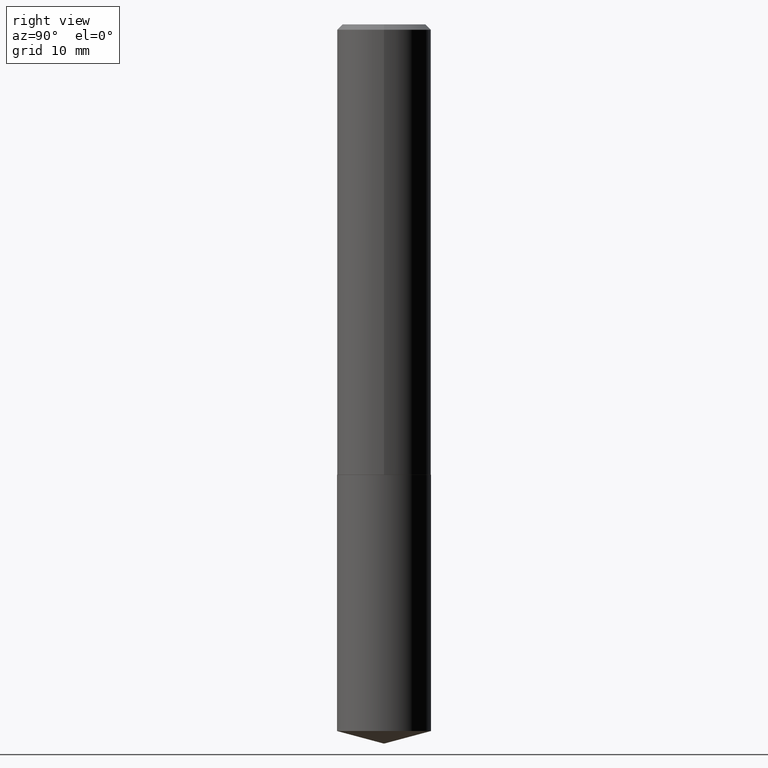
[diagram: clean part render]
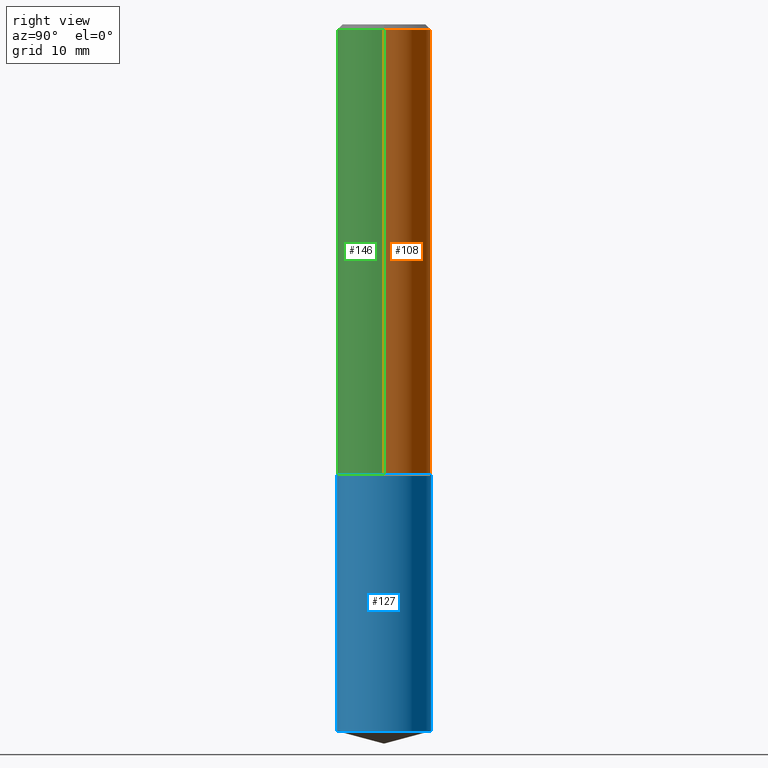
[diagram: same view with three faces highlighted in distinct colors, each labeled with its STEP entity id]
A machine part, right view with three faces highlighted in distinct colors.
Their STEP definitions:

[orange] entity #108 — the highlighted cylindrical surface (partial cylindrical patch) has radius 7.0002 mm, axis along (-0, 0, 1).
#11 = VERTEX_POINT ( 'NONE', #25 ) ;
#25 = CARTESIAN_POINT ( 'NONE',  ( -0.2756000000000002892, -7.249827955176189799E-15, -2.637300000000000200 ) ) ;
#28 = ORIENTED_EDGE ( 'NONE', *, *, #299, .F. ) ;
#30 = AXIS2_PLACEMENT_3D ( 'NONE', #114, #200, #268 ) ;
#52 = DIRECTION ( 'NONE',  ( -2.445468806185136597E-29, 3.491481338843145583E-15, 1.000000000000000000 ) ) ;
#53 = FACE_OUTER_BOUND ( 'NONE', #144, .T. ) ;
#54 = CARTESIAN_POINT ( 'NONE',  ( 0.2756000000000001782, -1.924504513970336137E-15, 1.343874319409360828E-29 ) ) ;
#56 = CYLINDRICAL_SURFACE ( 'NONE', #236, 0.2756000000000001782 ) ;
#60 = CARTESIAN_POINT ( 'NONE',  ( 0.2756000000000002892, -1.113258824890136450E-14, -2.637300000000000200 ) ) ;
#69 = DIRECTION ( 'NONE',  ( -2.445468806185136877E-29, 3.491481338843145188E-15, 1.000000000000000000 ) ) ;
#73 = CARTESIAN_POINT ( 'NONE',  ( 0.2756000000000000116, -2.033613305809184449E-15, -0.03125000000000020123 ) ) ;
#79 = VERTEX_POINT ( 'NONE', #87 ) ;
#86 = DIRECTION ( 'NONE',  ( -2.445468806185136877E-29, 3.491481338843145188E-15, 1.000000000000000000 ) ) ;
#87 = CARTESIAN_POINT ( 'NONE',  ( -0.2756000000000000116, -2.700340483630100761E-15, -0.03125000000000020123 ) ) ;
#89 = LINE ( 'NONE', #54, #216 ) ;
#96 = ORIENTED_EDGE ( 'NONE', *, *, #305, .T. ) ;
#105 = LINE ( 'NONE', #293, #110 ) ;
#108 = ADVANCED_FACE ( 'NONE', ( #53 ), #56, .T. ) ;
#110 = VECTOR ( 'NONE', #69, 39.37007874015748143 ) ;
#114 = CARTESIAN_POINT ( 'NONE',  ( 7.642090019328601786E-31, -1.091087918388490144E-16, -0.03125000000000020123 ) ) ;
#144 = EDGE_LOOP ( 'NONE', ( #96, #302, #174, #28 ) ) ;
#158 = VERTEX_POINT ( 'NONE', #60 ) ;
#160 = CIRCLE ( 'NONE', #30, 0.2756000000000000116 ) ;
#172 = DIRECTION ( 'NONE',  ( 1.000000000000000000, -6.982962677686265922E-15, 0.000000000000000000 ) ) ;
#174 = ORIENTED_EDGE ( 'NONE', *, *, #368, .F. ) ;
#175 = CARTESIAN_POINT ( 'NONE',  ( 0.000000000000000000, 0.000000000000000000, 0.000000000000000000 ) ) ;
#182 = VERTEX_POINT ( 'NONE', #73 ) ;
#200 = DIRECTION ( 'NONE',  ( -2.445468806185136597E-29, 3.491481338843145583E-15, 1.000000000000000000 ) ) ;
#203 = EDGE_CURVE ( 'NONE', #11, #79, #105, .T. ) ;
#205 = CARTESIAN_POINT ( 'NONE',  ( 6.449434882552062671E-29, -9.208083734931027966E-15, -2.637300000000000200 ) ) ;
#216 = VECTOR ( 'NONE', #86, 39.37007874015748143 ) ;
#236 = AXIS2_PLACEMENT_3D ( 'NONE', #175, #238, #356 ) ;
#238 = DIRECTION ( 'NONE',  ( -2.445468806185136597E-29, 3.491481338843145583E-15, 1.000000000000000000 ) ) ;
#263 = AXIS2_PLACEMENT_3D ( 'NONE', #205, #52, #172 ) ;
#268 = DIRECTION ( 'NONE',  ( 1.000000000000000000, -6.982962677686267499E-15, 0.000000000000000000 ) ) ;
#293 = CARTESIAN_POINT ( 'NONE',  ( -0.2756000000000001782, 1.958255779754837378E-15, -1.355658510874252848E-29 ) ) ;
#299 = EDGE_CURVE ( 'NONE', #158, #182, #89, .T. ) ;
#302 = ORIENTED_EDGE ( 'NONE', *, *, #203, .T. ) ;
#305 = EDGE_CURVE ( 'NONE', #158, #11, #360, .T. ) ;
#356 = DIRECTION ( 'NONE',  ( 1.000000000000000000, -6.982962677686265922E-15, 4.876176775795935793E-29 ) ) ;
#360 = CIRCLE ( 'NONE', #263, 0.2756000000000002892 ) ;
#368 = EDGE_CURVE ( 'NONE', #182, #79, #160, .T. ) ;

[blue] entity #127 — the highlighted cylindrical surface (partial cylindrical patch) has radius 7.0002 mm, axis along (-0, 0, 1).
#13 = VECTOR ( 'NONE', #119, 39.37007874015748143 ) ;
#23 = LINE ( 'NONE', #202, #13 ) ;
#29 = EDGE_CURVE ( 'NONE', #167, #138, #23, .T. ) ;
#43 = CIRCLE ( 'NONE', #279, 0.2756000000000000116 ) ;
#55 = DIRECTION ( 'NONE',  ( -6.982962677686265922E-15, -1.000000000000000000, 3.964946289788480896E-15 ) ) ;
#71 = CIRCLE ( 'NONE', #124, 0.2756000000000000116 ) ;
#80 = CARTESIAN_POINT ( 'NONE',  ( -1.924504513970233585E-15, -0.2756000000000144445, -4.138753202565982114 ) ) ;
#82 = ORIENTED_EDGE ( 'NONE', *, *, #29, .T. ) ;
#100 = DIRECTION ( 'NONE',  ( -2.445558201220444659E-29, 3.491353320064535150E-15, 1.000000000000000000 ) ) ;
#113 = CARTESIAN_POINT ( 'NONE',  ( 6.450657616955154352E-29, -9.209829475600450259E-15, -2.637800000000000367 ) ) ;
#115 = FACE_OUTER_BOUND ( 'NONE', #348, .T. ) ;
#117 = AXIS2_PLACEMENT_3D ( 'NONE', #113, #331, #55 ) ;
#119 = DIRECTION ( 'NONE',  ( -2.445558201220444659E-29, 3.491353320064535150E-15, 1.000000000000000000 ) ) ;
#124 = AXIS2_PLACEMENT_3D ( 'NONE', #285, #162, #346 ) ;
#127 = ADVANCED_FACE ( 'NONE', ( #115 ), #271, .T. ) ;
#130 = EDGE_CURVE ( 'NONE', #261, #269, #180, .T. ) ;
#138 = VERTEX_POINT ( 'NONE', #272 ) ;
#148 = DIRECTION ( 'NONE',  ( -2.445558201220444659E-29, 3.491353320064535150E-15, 1.000000000000000000 ) ) ;
#162 = DIRECTION ( 'NONE',  ( -2.445558201220444659E-29, 3.491353320064535150E-15, 1.000000000000000000 ) ) ;
#166 = CARTESIAN_POINT ( 'NONE',  ( -1.924504513970270662E-15, -0.2756000000000092265, -2.637799999999999478 ) ) ;
#167 = VERTEX_POINT ( 'NONE', #310 ) ;
#180 = LINE ( 'NONE', #307, #288 ) ;
#191 = DIRECTION ( 'NONE',  ( -6.982962677686265922E-15, -1.000000000000000000, 3.964946289788480896E-15 ) ) ;
#193 = EDGE_CURVE ( 'NONE', #269, #138, #43, .T. ) ;
#195 = ORIENTED_EDGE ( 'NONE', *, *, #212, .T. ) ;
#202 = CARTESIAN_POINT ( 'NONE',  ( 1.958255779754900487E-15, 0.2755999999999907968, -2.637800000000001699 ) ) ;
#212 = EDGE_CURVE ( 'NONE', #261, #167, #71, .T. ) ;
#252 = CARTESIAN_POINT ( 'NONE',  ( 6.450657616955154352E-29, -9.209829475600450259E-15, -2.637800000000000367 ) ) ;
#261 = VERTEX_POINT ( 'NONE', #80 ) ;
#269 = VERTEX_POINT ( 'NONE', #166 ) ;
#271 = CYLINDRICAL_SURFACE ( 'NONE', #117, 0.2756000000000000116 ) ;
#272 = CARTESIAN_POINT ( 'NONE',  ( 1.958255779754937564E-15, 0.2755999999999907968, -2.637800000000001699 ) ) ;
#279 = AXIS2_PLACEMENT_3D ( 'NONE', #252, #100, #191 ) ;
#281 = ORIENTED_EDGE ( 'NONE', *, *, #130, .F. ) ;
#285 = CARTESIAN_POINT ( 'NONE',  ( 1.012132603113848376E-28, -1.445018742264069166E-14, -4.138753202565983003 ) ) ;
#288 = VECTOR ( 'NONE', #148, 39.37007874015748143 ) ;
#307 = CARTESIAN_POINT ( 'NONE',  ( -1.924504513970270662E-15, -0.2756000000000092265, -2.637799999999999478 ) ) ;
#310 = CARTESIAN_POINT ( 'NONE',  ( 1.958255779754936775E-15, 0.2755999999999855232, -4.138753202565984779 ) ) ;
#331 = DIRECTION ( 'NONE',  ( -2.445558201220444659E-29, 3.491353320064535150E-15, 1.000000000000000000 ) ) ;
#346 = DIRECTION ( 'NONE',  ( -6.982962677686265922E-15, -1.000000000000000000, 3.964946289788480896E-15 ) ) ;
#348 = EDGE_LOOP ( 'NONE', ( #195, #82, #357, #281 ) ) ;
#357 = ORIENTED_EDGE ( 'NONE', *, *, #193, .F. ) ;

[green] entity #146 — the highlighted cylindrical surface (partial cylindrical patch) has radius 7.0002 mm, axis along (-0, 0, 1).
#11 = VERTEX_POINT ( 'NONE', #25 ) ;
#25 = CARTESIAN_POINT ( 'NONE',  ( -0.2756000000000002892, -7.249827955176189799E-15, -2.637300000000000200 ) ) ;
#36 = CIRCLE ( 'NONE', #308, 0.2756000000000002892 ) ;
#54 = CARTESIAN_POINT ( 'NONE',  ( 0.2756000000000001782, -1.924504513970336137E-15, 1.343874319409360828E-29 ) ) ;
#59 = DIRECTION ( 'NONE',  ( 1.000000000000000000, -6.982962677686265922E-15, 0.000000000000000000 ) ) ;
#60 = CARTESIAN_POINT ( 'NONE',  ( 0.2756000000000002892, -1.113258824890136450E-14, -2.637300000000000200 ) ) ;
#61 = EDGE_CURVE ( 'NONE', #79, #182, #359, .T. ) ;
#69 = DIRECTION ( 'NONE',  ( -2.445468806185136877E-29, 3.491481338843145188E-15, 1.000000000000000000 ) ) ;
#73 = CARTESIAN_POINT ( 'NONE',  ( 0.2756000000000000116, -2.033613305809184449E-15, -0.03125000000000020123 ) ) ;
#79 = VERTEX_POINT ( 'NONE', #87 ) ;
#86 = DIRECTION ( 'NONE',  ( -2.445468806185136877E-29, 3.491481338843145188E-15, 1.000000000000000000 ) ) ;
#87 = CARTESIAN_POINT ( 'NONE',  ( -0.2756000000000000116, -2.700340483630100761E-15, -0.03125000000000020123 ) ) ;
#89 = LINE ( 'NONE', #54, #216 ) ;
#90 = CARTESIAN_POINT ( 'NONE',  ( 7.642090019328601786E-31, -1.091087918388490144E-16, -0.03125000000000020123 ) ) ;
#105 = LINE ( 'NONE', #293, #110 ) ;
#110 = VECTOR ( 'NONE', #69, 39.37007874015748143 ) ;
#116 = DIRECTION ( 'NONE',  ( -2.445468806185136597E-29, 3.491481338843145583E-15, 1.000000000000000000 ) ) ;
#146 = ADVANCED_FACE ( 'NONE', ( #171 ), #147, .T. ) ;
#147 = CYLINDRICAL_SURFACE ( 'NONE', #347, 0.2756000000000001782 ) ;
#158 = VERTEX_POINT ( 'NONE', #60 ) ;
#171 = FACE_OUTER_BOUND ( 'NONE', #211, .T. ) ;
#182 = VERTEX_POINT ( 'NONE', #73 ) ;
#198 = DIRECTION ( 'NONE',  ( 1.000000000000000000, -6.982962677686265922E-15, 4.876176775795935793E-29 ) ) ;
#203 = EDGE_CURVE ( 'NONE', #11, #79, #105, .T. ) ;
#206 = DIRECTION ( 'NONE',  ( -2.445468806185136597E-29, 3.491481338843145583E-15, 1.000000000000000000 ) ) ;
#211 = EDGE_LOOP ( 'NONE', ( #239, #292, #231, #317 ) ) ;
#216 = VECTOR ( 'NONE', #86, 39.37007874015748143 ) ;
#231 = ORIENTED_EDGE ( 'NONE', *, *, #299, .T. ) ;
#232 = CARTESIAN_POINT ( 'NONE',  ( 0.000000000000000000, 0.000000000000000000, 0.000000000000000000 ) ) ;
#239 = ORIENTED_EDGE ( 'NONE', *, *, #203, .F. ) ;
#262 = AXIS2_PLACEMENT_3D ( 'NONE', #90, #206, #329 ) ;
#292 = ORIENTED_EDGE ( 'NONE', *, *, #379, .T. ) ;
#293 = CARTESIAN_POINT ( 'NONE',  ( -0.2756000000000001782, 1.958255779754837378E-15, -1.355658510874252848E-29 ) ) ;
#299 = EDGE_CURVE ( 'NONE', #158, #182, #89, .T. ) ;
#308 = AXIS2_PLACEMENT_3D ( 'NONE', #386, #116, #59 ) ;
#317 = ORIENTED_EDGE ( 'NONE', *, *, #61, .F. ) ;
#329 = DIRECTION ( 'NONE',  ( 1.000000000000000000, -6.982962677686267499E-15, 0.000000000000000000 ) ) ;
#347 = AXIS2_PLACEMENT_3D ( 'NONE', #232, #352, #198 ) ;
#352 = DIRECTION ( 'NONE',  ( -2.445468806185136597E-29, 3.491481338843145583E-15, 1.000000000000000000 ) ) ;
#359 = CIRCLE ( 'NONE', #262, 0.2756000000000000116 ) ;
#379 = EDGE_CURVE ( 'NONE', #11, #158, #36, .T. ) ;
#386 = CARTESIAN_POINT ( 'NONE',  ( 6.449434882552062671E-29, -9.208083734931027966E-15, -2.637300000000000200 ) ) ;